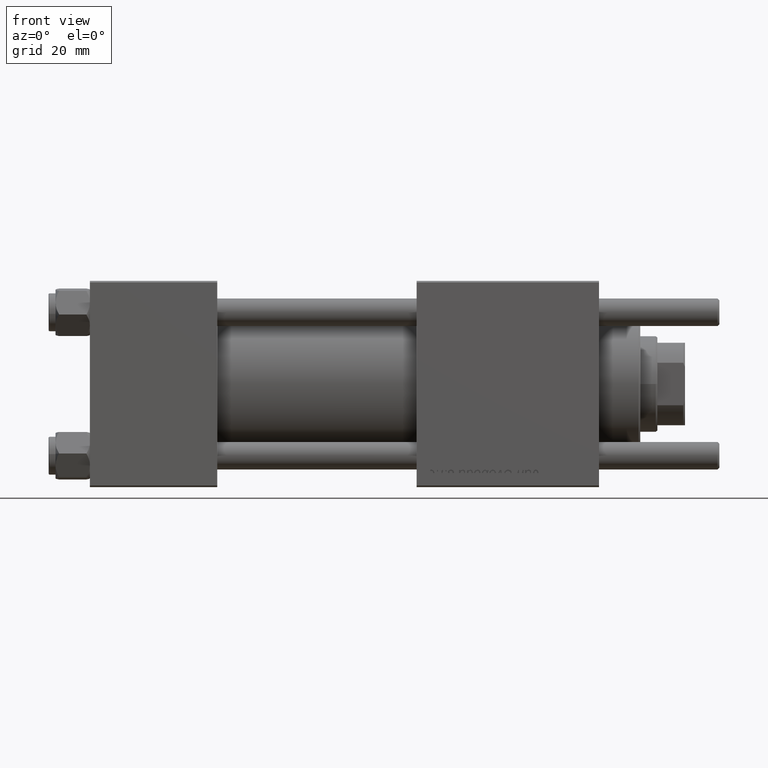
[diagram: clean part render]
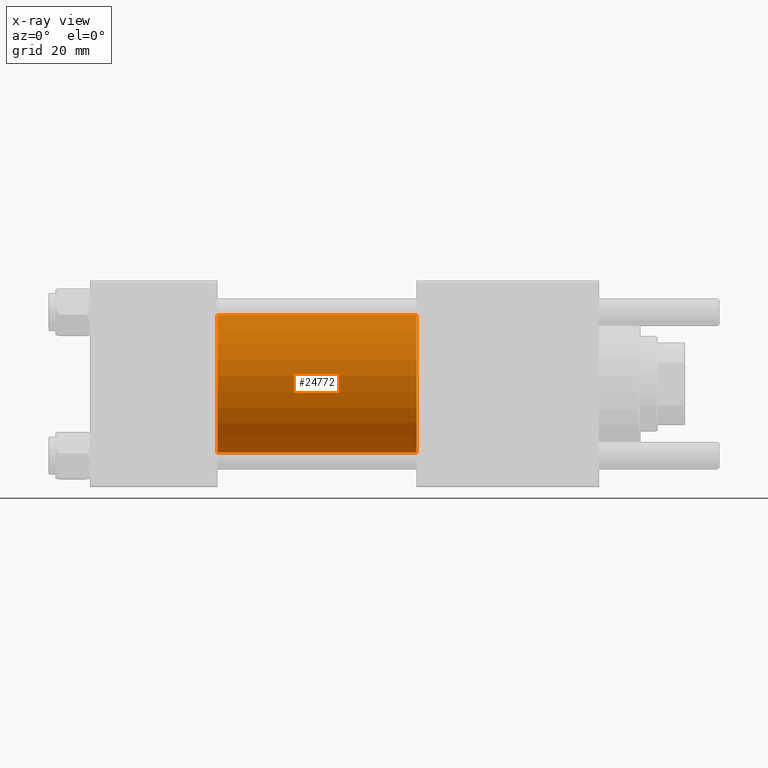
[diagram: x-ray — body ghosted, one internal face saturated and labeled with its STEP entity id]
A machine part, front view, then the same camera in x-ray: the body is ghosted and one INTERNAL B-rep face — a face not visible from any outside direction — is saturated and labeled: STEP entity #24772.
In plain terms, the highlighted cylindrical surface (partial cylindrical patch) has radius 20 mm, axis along (-1, -0, -0).
Its self-contained STEP definition (entity closure, byte-faithful):
#3407 = VERTEX_POINT ( 'NONE', #48023 ) ;
#3467 = CARTESIAN_POINT ( 'NONE',  ( 95.00000000000000000, -1.527916156705046464E-16, -20.00000000000000000 ) ) ;
#3695 = LINE ( 'NONE', #8286, #25872 ) ;
#3955 = CIRCLE ( 'NONE', #23262, 20.00000000000000000 ) ;
#4237 = EDGE_LOOP ( 'NONE', ( #17989, #5596, #41887, #12098 ) ) ;
#5596 = ORIENTED_EDGE ( 'NONE', *, *, #16016, .T. ) ;
#5719 = AXIS2_PLACEMENT_3D ( 'NONE', #23045, #6054, #27945 ) ;
#6054 = DIRECTION ( 'NONE',  ( -1.000000000000000000, -0.000000000000000000, -0.000000000000000000 ) ) ;
#8286 = CARTESIAN_POINT ( 'NONE',  ( 95.00000000000000000, -2.602085213965210642E-15, 20.00000000000000000 ) ) ;
#12000 = VERTEX_POINT ( 'NONE', #44115 ) ;
#12098 = ORIENTED_EDGE ( 'NONE', *, *, #49430, .F. ) ;
#13461 = DIRECTION ( 'NONE',  ( -1.000000000000000000, -0.000000000000000000, -0.000000000000000000 ) ) ;
#14990 = CYLINDRICAL_SURFACE ( 'NONE', #5719, 20.00000000000000000 ) ;
#16016 = EDGE_CURVE ( 'NONE', #23180, #12000, #34278, .T. ) ;
#17044 = VERTEX_POINT ( 'NONE', #26817 ) ;
#17989 = ORIENTED_EDGE ( 'NONE', *, *, #24098, .T. ) ;
#21987 = VECTOR ( 'NONE', #51006, 1000.000000000000000 ) ;
#23045 = CARTESIAN_POINT ( 'NONE',  ( 95.00000000000000000, -2.602085213965210642E-15, 0.000000000000000000 ) ) ;
#23180 = VERTEX_POINT ( 'NONE', #3467 ) ;
#23262 = AXIS2_PLACEMENT_3D ( 'NONE', #34581, #46722, #38636 ) ;
#24098 = EDGE_CURVE ( 'NONE', #3407, #23180, #53526, .T. ) ;
#24772 = ADVANCED_FACE ( 'NONE', ( #49006 ), #14990, .F. ) ;
#25872 = VECTOR ( 'NONE', #13461, 1000.000000000000000 ) ;
#26817 = CARTESIAN_POINT ( 'NONE',  ( 37.00000000000000000, -2.602085213965210642E-15, 20.00000000000000000 ) ) ;
#27117 = EDGE_CURVE ( 'NONE', #17044, #12000, #3955, .T. ) ;
#27945 = DIRECTION ( 'NONE',  ( 0.000000000000000000, 0.000000000000000000, 1.000000000000000000 ) ) ;
#28175 = DIRECTION ( 'NONE',  ( 0.000000000000000000, 0.000000000000000000, -1.000000000000000000 ) ) ;
#28658 = AXIS2_PLACEMENT_3D ( 'NONE', #32514, #44634, #28175 ) ;
#32514 = CARTESIAN_POINT ( 'NONE',  ( 95.00000000000000000, -2.602085213965210642E-15, 0.000000000000000000 ) ) ;
#34278 = LINE ( 'NONE', #46683, #21987 ) ;
#34581 = CARTESIAN_POINT ( 'NONE',  ( 37.00000000000000000, -2.602085213965210642E-15, 0.000000000000000000 ) ) ;
#38636 = DIRECTION ( 'NONE',  ( 0.000000000000000000, 0.000000000000000000, -1.000000000000000000 ) ) ;
#41887 = ORIENTED_EDGE ( 'NONE', *, *, #27117, .F. ) ;
#44115 = CARTESIAN_POINT ( 'NONE',  ( 37.00000000000000000, -1.527916156705046464E-16, -20.00000000000000000 ) ) ;
#44634 = DIRECTION ( 'NONE',  ( 1.000000000000000000, 0.000000000000000000, 0.000000000000000000 ) ) ;
#46683 = CARTESIAN_POINT ( 'NONE',  ( 95.00000000000000000, -1.527916156705046464E-16, -20.00000000000000000 ) ) ;
#46722 = DIRECTION ( 'NONE',  ( 1.000000000000000000, 0.000000000000000000, 0.000000000000000000 ) ) ;
#48023 = CARTESIAN_POINT ( 'NONE',  ( 95.00000000000000000, -2.602085213965210642E-15, 20.00000000000000000 ) ) ;
#49006 = FACE_OUTER_BOUND ( 'NONE', #4237, .T. ) ;
#49430 = EDGE_CURVE ( 'NONE', #3407, #17044, #3695, .T. ) ;
#51006 = DIRECTION ( 'NONE',  ( -1.000000000000000000, -0.000000000000000000, -0.000000000000000000 ) ) ;
#53526 = CIRCLE ( 'NONE', #28658, 20.00000000000000000 ) ;